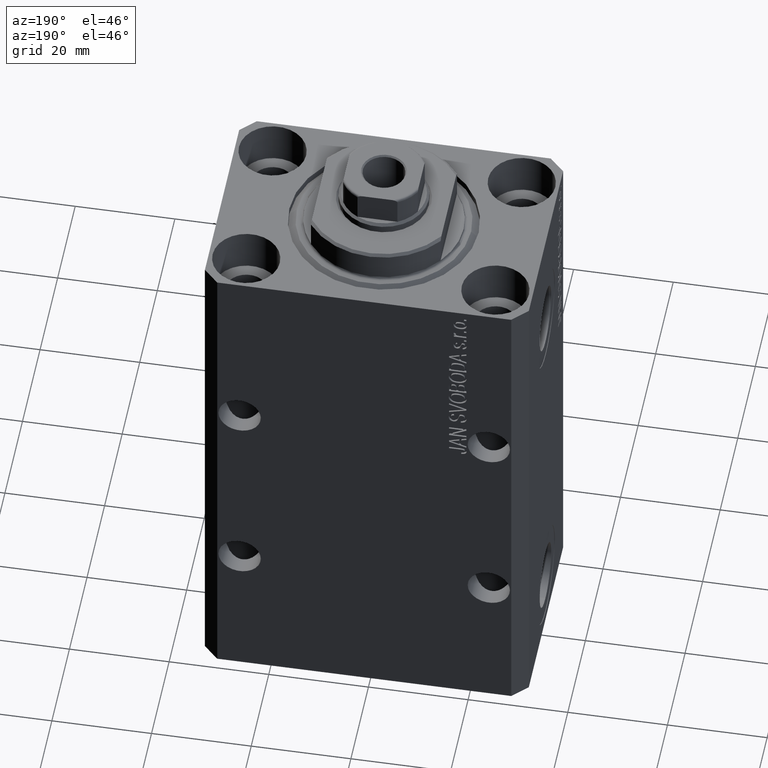
[diagram: clean part render]
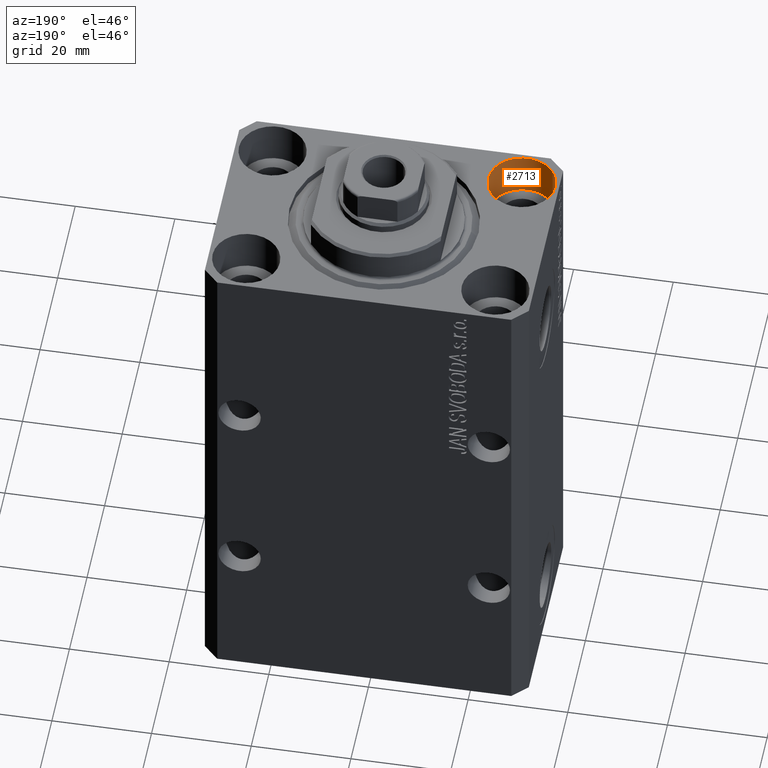
[diagram: same view with one face highlighted and labeled with its STEP entity id]
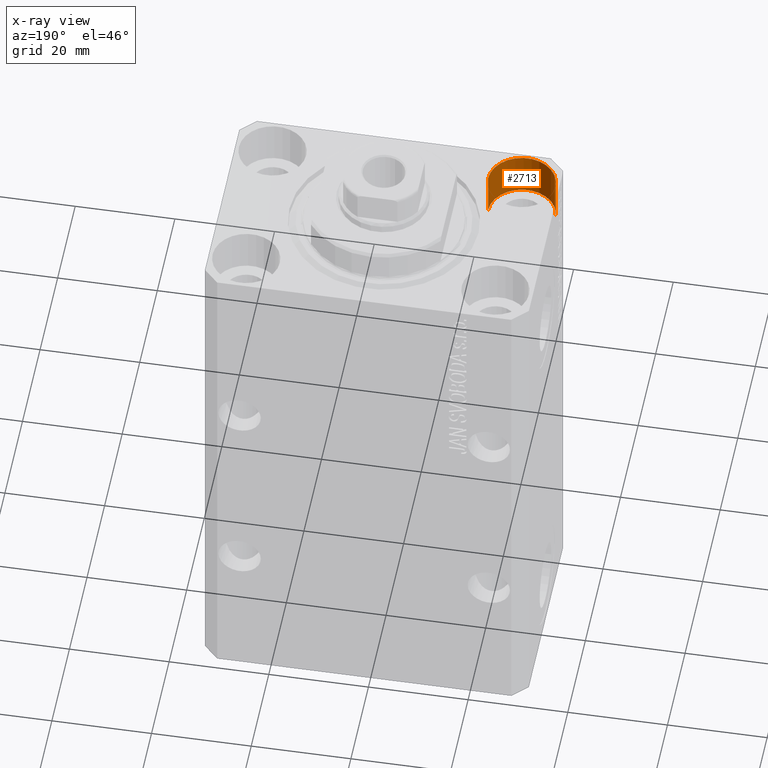
[diagram: x-ray of the same camera — body ghosted, the highlighted face saturated]
A machine part, auxiliary view. The second image highlights one B-rep face of the part: STEP entity #2713.
The next image is the same camera in x-ray: the body ghosted, the highlighted face saturated — about 0% of this face is hidden behind the body in this view.
In plain terms, the highlighted cylindrical surface (edge-blend (fillet) strip) has radius 6.75 mm, axis along (0, 0, 1).
Its self-contained STEP definition (entity closure, byte-faithful):
#100 = CARTESIAN_POINT ( 'NONE',  ( -18.24999999995846167, -15.00000000000000000, 0.000000000000000000 ) ) ;
#703 = DIRECTION ( 'NONE',  ( 1.000000000000000000, 0.000000000000000000, 0.000000000000000000 ) ) ;
#1529 = CYLINDRICAL_SURFACE ( 'NONE', #3952, 6.750000000041541881 ) ;
#1980 = DIRECTION ( 'NONE',  ( -0.000000000000000000, -0.000000000000000000, 1.000000000000000000 ) ) ;
#2713 = ADVANCED_FACE ( 'NONE', ( #11669 ), #1529, .F. ) ;
#3952 = AXIS2_PLACEMENT_3D ( 'NONE', #11437, #1980, #12337 ) ;
#6143 = CARTESIAN_POINT ( 'NONE',  ( -31.75000000004154899, -15.00000000000000000, -9.000000000000000000 ) ) ;
#6291 = CARTESIAN_POINT ( 'NONE',  ( -18.24999999995846167, -15.00000000000000000, -9.000000000000000000 ) ) ;
#6294 = VERTEX_POINT ( 'NONE', #9307 ) ;
#6453 = CARTESIAN_POINT ( 'NONE',  ( -31.75000000004154899, -15.00000000000000000, -9.000000000000000000 ) ) ;
#7874 = DIRECTION ( 'NONE',  ( -0.000000000000000000, -0.000000000000000000, 1.000000000000000000 ) ) ;
#8047 = DIRECTION ( 'NONE',  ( 0.000000000000000000, 0.000000000000000000, 1.000000000000000000 ) ) ;
#9307 = CARTESIAN_POINT ( 'NONE',  ( -18.24999999995846167, -15.00000000000000000, -9.000000000000000000 ) ) ;
#11282 = EDGE_CURVE ( 'NONE', #6294, #41650, #37804, .T. ) ;
#11437 = CARTESIAN_POINT ( 'NONE',  ( -25.00000000000000355, -15.00000000000000000, -9.000000000000000000 ) ) ;
#11669 = FACE_OUTER_BOUND ( 'NONE', #35034, .T. ) ;
#12337 = DIRECTION ( 'NONE',  ( 1.000000000000000000, 0.000000000000000000, 0.000000000000000000 ) ) ;
#13949 = CIRCLE ( 'NONE', #39648, 6.750000000041541881 ) ;
#16464 = VERTEX_POINT ( 'NONE', #6453 ) ;
#16824 = DIRECTION ( 'NONE',  ( 1.000000000000000000, 0.000000000000000000, 0.000000000000000000 ) ) ;
#17513 = CARTESIAN_POINT ( 'NONE',  ( -25.00000000000000355, -15.00000000000000000, 0.000000000000000000 ) ) ;
#21987 = ORIENTED_EDGE ( 'NONE', *, *, #42840, .T. ) ;
#24565 = ORIENTED_EDGE ( 'NONE', *, *, #34633, .F. ) ;
#24970 = VERTEX_POINT ( 'NONE', #41110 ) ;
#25811 = VECTOR ( 'NONE', #44784, 1000.000000000000000 ) ;
#26583 = CIRCLE ( 'NONE', #28030, 6.750000000041541881 ) ;
#27175 = CARTESIAN_POINT ( 'NONE',  ( -25.00000000000000355, -15.00000000000000000, -9.000000000000000000 ) ) ;
#28030 = AXIS2_PLACEMENT_3D ( 'NONE', #17513, #8047, #703 ) ;
#32134 = VECTOR ( 'NONE', #7874, 1000.000000000000000 ) ;
#32321 = ORIENTED_EDGE ( 'NONE', *, *, #11282, .F. ) ;
#34633 = EDGE_CURVE ( 'NONE', #16464, #6294, #13949, .T. ) ;
#35034 = EDGE_LOOP ( 'NONE', ( #24565, #38756, #21987, #32321 ) ) ;
#37660 = LINE ( 'NONE', #6143, #25811 ) ;
#37804 = LINE ( 'NONE', #6291, #32134 ) ;
#37974 = EDGE_CURVE ( 'NONE', #16464, #24970, #37660, .T. ) ;
#38756 = ORIENTED_EDGE ( 'NONE', *, *, #37974, .T. ) ;
#39648 = AXIS2_PLACEMENT_3D ( 'NONE', #27175, #41180, #16824 ) ;
#41110 = CARTESIAN_POINT ( 'NONE',  ( -31.75000000004154899, -15.00000000000000000, 0.000000000000000000 ) ) ;
#41180 = DIRECTION ( 'NONE',  ( 0.000000000000000000, 0.000000000000000000, 1.000000000000000000 ) ) ;
#41650 = VERTEX_POINT ( 'NONE', #100 ) ;
#42840 = EDGE_CURVE ( 'NONE', #24970, #41650, #26583, .T. ) ;
#44784 = DIRECTION ( 'NONE',  ( -0.000000000000000000, -0.000000000000000000, 1.000000000000000000 ) ) ;